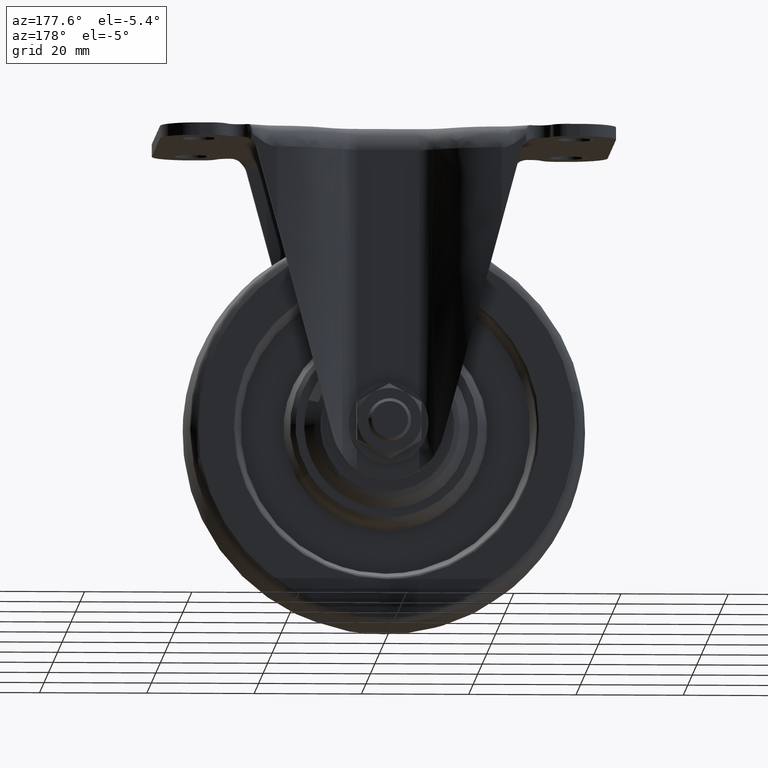
[diagram: clean part render]
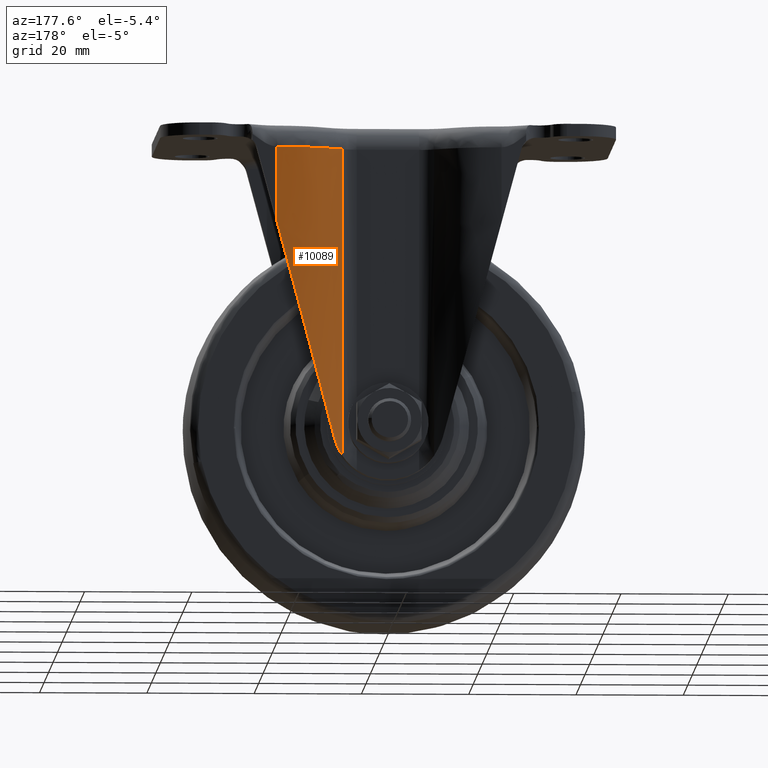
[diagram: same view with one face highlighted and labeled with its STEP entity id]
A machine part, auxiliary view. The second image highlights one B-rep face of the part: STEP entity #10089.
In plain terms, the highlighted face is a freeform B-spline surface patch.
Its self-contained STEP definition (entity closure, byte-faithful):
#8153=CARTESIAN_POINT('',(8.562133328561540,19.090909080021451,-4.300000000000000));
#8154=VERTEX_POINT('',#8153);
#8217=CARTESIAN_POINT('',(20.916407000000000,24.0,-4.300000000000000));
#8218=VERTEX_POINT('',#8217);
#8232=CARTESIAN_POINT('',(8.562133328561540,19.090909080021451,-4.300000000000000));
#8233=CARTESIAN_POINT('',(13.763932629208602,23.999999999999996,-4.300000000000000));
#8234=CARTESIAN_POINT('',(20.916407000000000,24.0,-4.300000000000000));
#8242=(BOUNDED_CURVE()B_SPLINE_CURVE(2,(#8232,#8233,#8234),.UNSPECIFIED.,.F.,.U.)CURVE()GEOMETRIC_REPRESENTATION_ITEM()QUASI_UNIFORM_CURVE()RATIONAL_B_SPLINE_CURVE((1.0,0.929320383616185,1.0))REPRESENTATION_ITEM(''));
#8243=EDGE_CURVE('',#8154,#8218,#8242,.T.);
#9531=CARTESIAN_POINT('',(20.916407000000000,24.0,-18.380279761212599));
#9532=VERTEX_POINT('',#9531);
#9542=CARTESIAN_POINT('',(10.135846839228140,20.414559397358701,-58.241278594452012));
#9543=VERTEX_POINT('',#9542);
#9549=CARTESIAN_POINT('',(20.916407000000021,24.0,-18.380279761212609));
#9550=CARTESIAN_POINT('',(14.929897033441492,23.999999999999996,-40.515332414643503));
#9551=CARTESIAN_POINT('',(10.135846839228300,20.414559397358701,-58.241278594451323));
#9559=(BOUNDED_CURVE()B_SPLINE_CURVE(2,(#9549,#9550,#9551),.UNSPECIFIED.,.F.,.U.)CURVE()GEOMETRIC_REPRESENTATION_ITEM()QUASI_UNIFORM_CURVE()RATIONAL_B_SPLINE_CURVE((1.0,0.948896426225968,1.0))REPRESENTATION_ITEM(''));
#9560=EDGE_CURVE('',#9532,#9543,#9559,.T.);
#9619=CARTESIAN_POINT('',(8.562132918471811,19.090909514563201,-61.577818583590599));
#9620=VERTEX_POINT('',#9619);
#9636=CARTESIAN_POINT('',(10.135846839228140,20.414559397358602,-58.241278594452012));
#9637=CARTESIAN_POINT('',(10.050784790789621,20.350942015424749,-58.555794553084553));
#9638=CARTESIAN_POINT('',(9.952559973602225,20.276329107884209,-58.861028273677157));
#9639=CARTESIAN_POINT('',(9.732303095098523,20.104443777024340,-59.453762440695499));
#9640=CARTESIAN_POINT('',(9.610261306355966,20.007166769732709,-59.741257234419223));
#9641=CARTESIAN_POINT('',(9.344357932541193,19.788304164810679,-60.298787349726183));
#9642=CARTESIAN_POINT('',(9.200470368702664,19.666701713677849,-60.568851317733902));
#9643=CARTESIAN_POINT('',(8.892681608036163,19.396713573778602,-61.091254099555833));
#9644=CARTESIAN_POINT('',(8.730715465229256,19.250005793220279,-61.340327758432757));
#9645=CARTESIAN_POINT('',(8.562132918471811,19.090909514563201,-61.577818583590599));
#9646=B_SPLINE_CURVE_WITH_KNOTS('',3,(#9636,#9637,#9638,#9639,#9640,#9641,#9642,#9643,#9644,#9645),.UNSPECIFIED.,.F.,.U.,(4,2,2,2,4),(0.0,0.250000000000000,0.500000000000000,0.750000000000000,1.0),.UNSPECIFIED.);
#9647=EDGE_CURVE('',#9543,#9620,#9646,.T.);
#10051=CARTESIAN_POINT('',(20.916407000000000,24.0,-18.380279761212599));
#10052=CARTESIAN_POINT('',(20.916407000000000,24.0,-4.300000000000000));
#10053=QUASI_UNIFORM_CURVE('',1,(#10051,#10052),.UNSPECIFIED.,.F.,.U.);
#10054=EDGE_CURVE('',#9532,#8218,#10053,.T.);
#10064=CARTESIAN_POINT('',(8.223686357978899,18.763026392811831,-63.009764048180372));
#10065=CARTESIAN_POINT('',(8.223686357978899,18.763026392811831,-2.832255898795488));
#10066=CARTESIAN_POINT('',(13.767099395738855,24.275903270607238,-63.009764048180365));
#10067=CARTESIAN_POINT('',(13.767099395738855,24.275903270607238,-2.832255898795488));
#10068=CARTESIAN_POINT('',(21.579795443541546,23.987771284207941,-63.009764048180358));
#10069=CARTESIAN_POINT('',(21.579795443541546,23.987771284207941,-2.832255898795488));
#10077=(BOUNDED_SURFACE()B_SPLINE_SURFACE(1,2,((#10064,#10066,#10068),(#10065,#10067,#10069)),.UNSPECIFIED.,.F.,.F.,.U.)B_SPLINE_SURFACE_WITH_KNOTS((2,2),(3,3),(0.0,60.177508149384877),(0.0,14.960887525711060),.UNSPECIFIED.)GEOMETRIC_REPRESENTATION_ITEM()RATIONAL_B_SPLINE_SURFACE(((1.0,0.915482234090515,0.996213223412435),(1.0,0.915482234090515,0.996213223412435)))REPRESENTATION_ITEM('')SURFACE());
#10078=CARTESIAN_POINT('',(8.562132918471811,19.090909514563201,-61.577818583590599));
#10079=CARTESIAN_POINT('',(8.562133328561540,19.090909080021451,-4.300000000000000));
#10080=QUASI_UNIFORM_CURVE('',1,(#10078,#10079),.UNSPECIFIED.,.F.,.U.);
#10081=EDGE_CURVE('',#9620,#8154,#10080,.T.);
#10082=ORIENTED_EDGE('',*,*,#10081,.T.);
#10083=ORIENTED_EDGE('',*,*,#8243,.T.);
#10084=ORIENTED_EDGE('',*,*,#10054,.F.);
#10085=ORIENTED_EDGE('',*,*,#9560,.T.);
#10086=ORIENTED_EDGE('',*,*,#9647,.T.);
#10087=EDGE_LOOP('',(#10082,#10083,#10084,#10085,#10086));
#10088=FACE_OUTER_BOUND('',#10087,.T.);
#10089=ADVANCED_FACE('',(#10088),#10077,.T.);